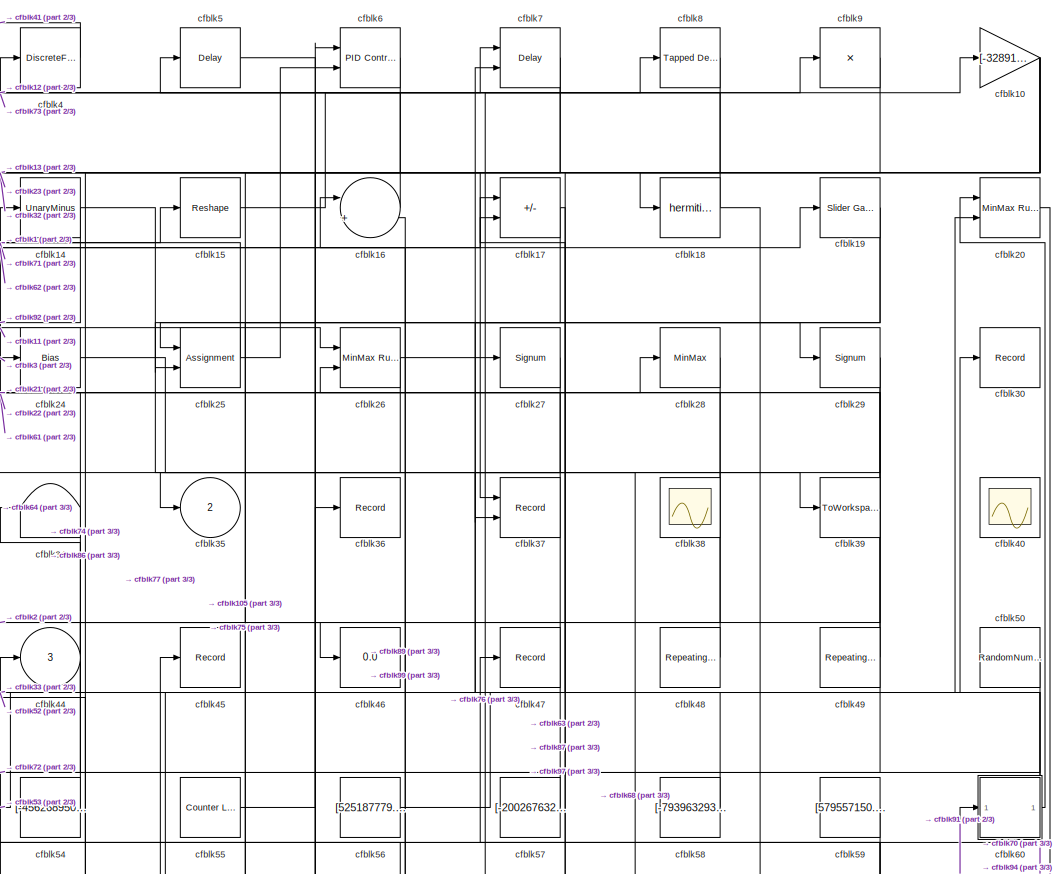
[diagram: root canvas - part 1/3, top center region]
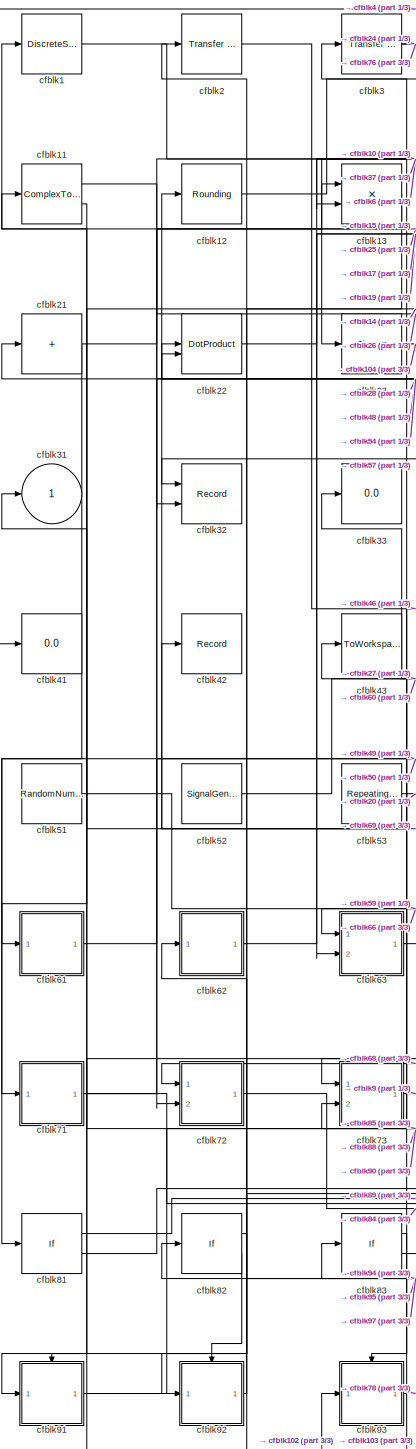
[diagram: root canvas - part 2/3, left side, full height]
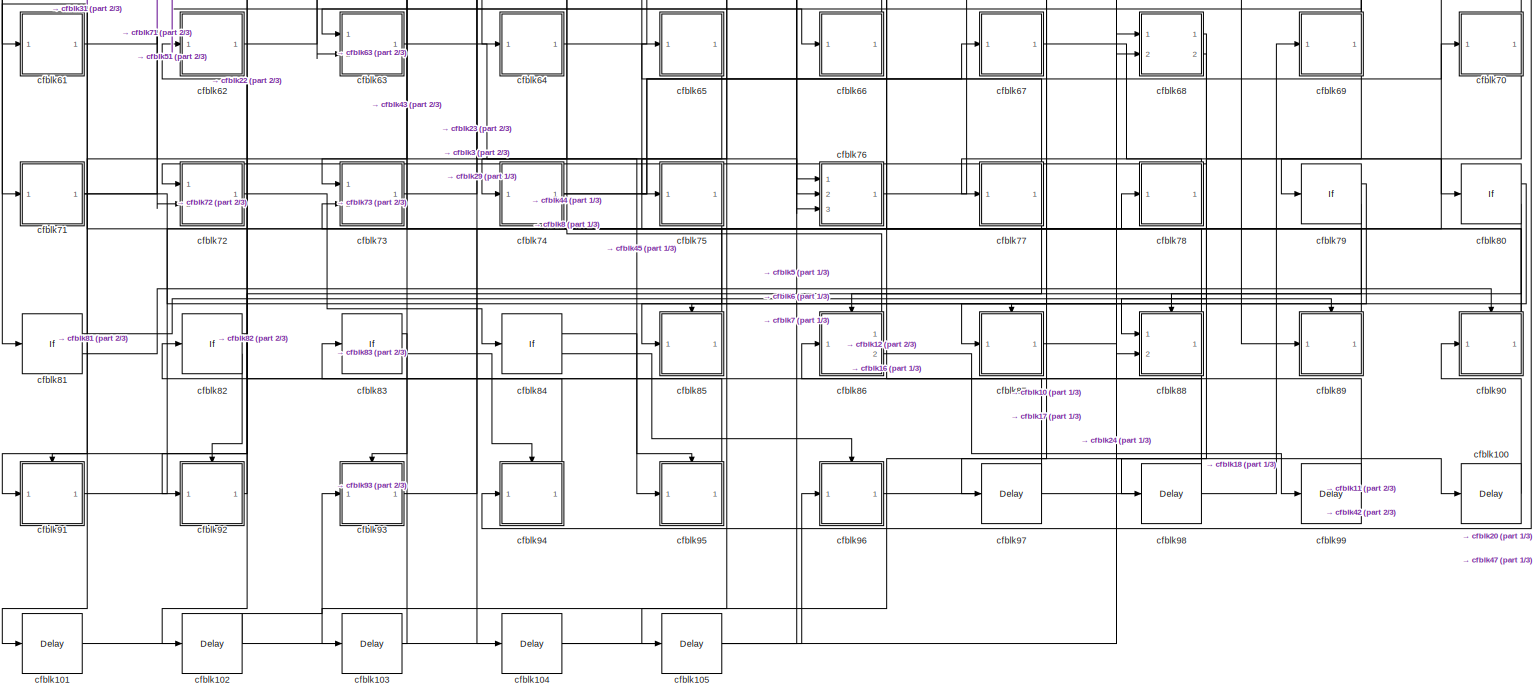
[diagram: root canvas - part 3/3, full width, bottom band]
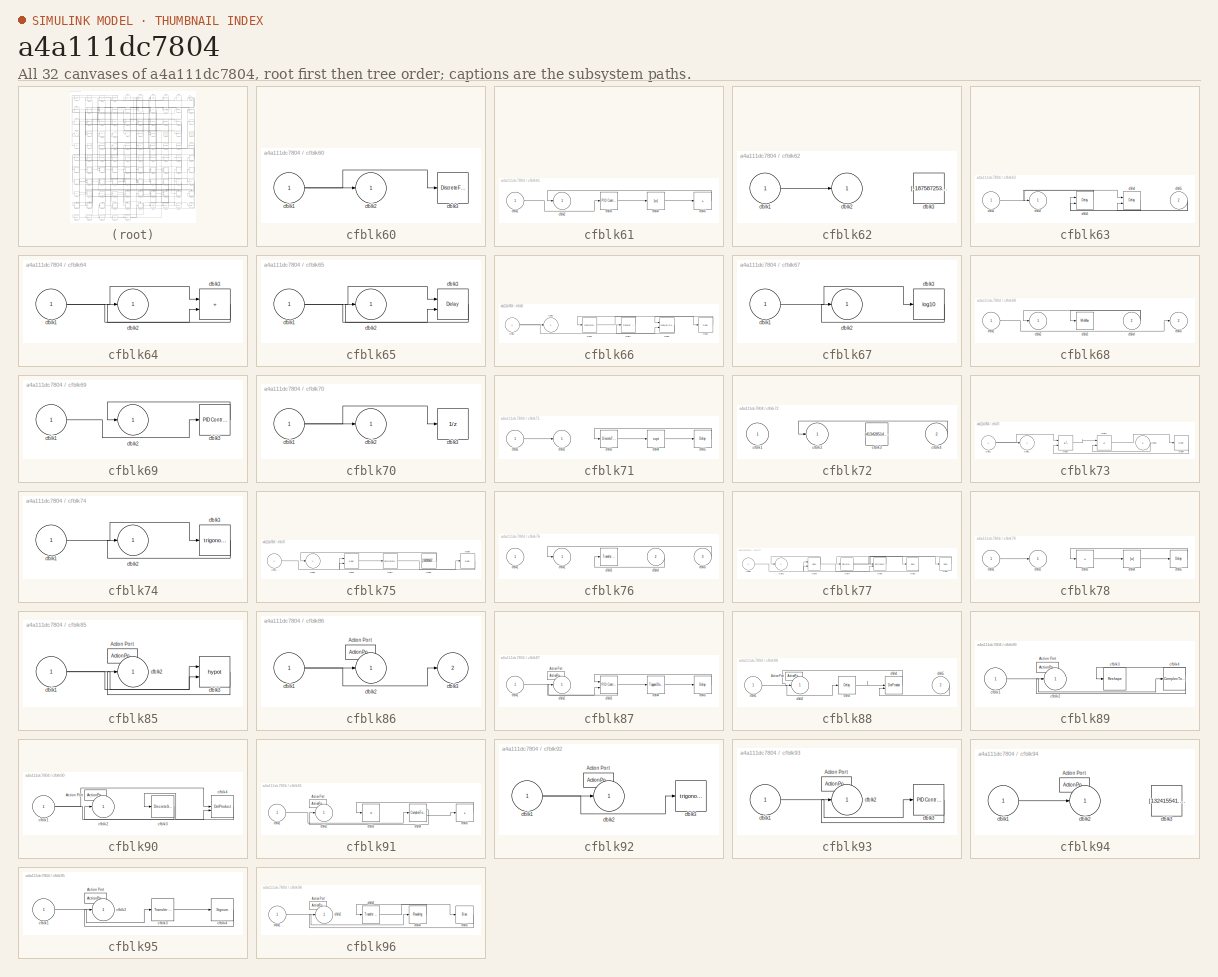
[diagram: thumbnail index - all 32 canvases of the model, root first then tree order]
MODEL slx_a4a111dc7804
KIND model
CONFIG AbsTol = auto
CONFIG EnableMultiTasking = off
CONFIG FixedStep = auto
CONFIG MaxStep = auto
CONFIG MinStep = auto
CONFIG RelTol = 1e-3
CONFIG SampleTimeConstraint = Unconstrained
CONFIG SolverName = VariableStepAuto
CONFIG StartTime = 0.0
CONFIG StopTime = 10.0
BLOCK [DiscreteStateSpace] cfblk1
BLOCK [Gain] cfblk10
  Gain = [-328914184.972476]
BLOCK [Delay] cfblk100
  InputPortMap = u0
  Ports = [1, 1]
  SampleTime = 1
BLOCK [Delay] cfblk101
  InputPortMap = u0
  Ports = [1, 1]
  SampleTime = 1
BLOCK [Delay] cfblk102
  InputPortMap = u0
  Ports = [1, 1]
  SampleTime = 1
BLOCK [Delay] cfblk103
  InputPortMap = u0
  Ports = [1, 1]
  SampleTime = 1
BLOCK [Delay] cfblk104
  InputPortMap = u0
  Ports = [1, 1]
  SampleTime = 1
BLOCK [Delay] cfblk105
  InputPortMap = u0
  Ports = [1, 1]
  SampleTime = 1
BLOCK [ComplexToMagnitudeAngle] cfblk11
  Ports = [1, 2]
BLOCK [Rounding] cfblk12
BLOCK [Product] cfblk13
  Ports = [2, 1]
BLOCK [UnaryMinus] cfblk14
BLOCK [Reshape] cfblk15
  Ports = [1, 1]
BLOCK [Sum] cfblk16
  Inputs = |++
  Ports = [2, 1]
BLOCK [Sum] cfblk17
  IconShape = rectangular
  Inputs = +-
  Ports = [2, 1]
BLOCK [Math] cfblk18
  Operator = hermitian
  Ports = [1, 1]
BLOCK [Reference] cfblk19  REF=simulink/Math
Operations/Slider
Gain
  Ports = [1, 1]
  SourceBlock = simulink/Math\nOperations/Slider\nGain
  SourceProductBaseCode = SL
  SourceType = Slider Gain
BLOCK [Reference] cfblk2  REF=simulink/Discrete/Transfer Fcn
Lead or Lag
  Ports = [1, 1]
  SourceBlock = simulink/Discrete/Transfer Fcn\nLead or Lag
  SourceProductBaseCode = SL
  SourceType = Lead or Lag Compensator
BLOCK [Reference] cfblk20  REF=simulink/Math
Operations/MinMax
Running
Resettable
  Ports = [2, 1]
  SourceBlock = simulink/Math\nOperations/MinMax\nRunning\nResettable
  SourceProductBaseCode = SL
  SourceType = MinMax Running Resettable
BLOCK [Sum] cfblk21
  IconShape = rectangular
  Inputs = +
  Ports = [1, 1]
BLOCK [DotProduct] cfblk22
  OutDataTypeStr = Inherit: Inherit via internal rule
BLOCK [Signum] cfblk23
BLOCK [Bias] cfblk24
  Bias = [-636820341.205109]
  SaturateOnIntegerOverflow = off
BLOCK [Assignment] cfblk25
  DiagnosticForDimensions = Warning
  IndexOptions = Index vector (dialog)
  Indices = 1
  OutputSizes = 1
  Ports = [2, 1]
BLOCK [Reference] cfblk26  REF=simulink/Math
Operations/MinMax
Running
Resettable
  Ports = [2, 1]
  SourceBlock = simulink/Math\nOperations/MinMax\nRunning\nResettable
  SourceProductBaseCode = SL
  SourceType = MinMax Running Resettable
BLOCK [Signum] cfblk27
BLOCK [MinMax] cfblk28
  Function = max
  Ports = [1, 1]
BLOCK [Signum] cfblk29
BLOCK [Reference] cfblk3  REF=simulink/Discrete/Transfer Fcn
Lead or Lag
  Ports = [1, 1]
  SourceBlock = simulink/Discrete/Transfer Fcn\nLead or Lag
  SourceProductBaseCode = SL
  SourceType = Lead or Lag Compensator
BLOCK [Record] cfblk30
  FileSettingsInternal = {"entries":[{"content":{"excelSettings":{"content":{},"type":"Streamout.ExcelSettings"}},"type":"Streamout.FileSettingStorage","uuid":"6f732440-8083-4618-a95b-73a9e3cbfb31"}],"packageUris":["http://schema.mathworks.com/mf0/streamout_blocks/R2020a"],"version":"1.0"}
  Ports = [1]
  SignalsInternal = {"entries":[{"content":{"signals":[{"content":{"blockPath":["sampleModel114/cfblk30"],"channel":[],"dimensions":[1],"domain":"sampleModel114/cfblk30","lineColor":"#7e2f8e","plots":[1],"port":1,"sid":[""],"signalID":3978,"signalName":"cfblk56"},"type":"RecordBlkView.Signal","uuid":"abaa850d-7071-47b1-b445-014e62ea0cca"}]},"type":"RecordBlkView.InputSignals","uuid":"15313e5a-d335-4cfa-938b-77975951e...<+97ch>
  VisualizationBindings = {"sparklinesplugin":{"info":[{"bindingParametersList":[],"subplotID":1}]}}
BLOCK [Outport] cfblk31
BLOCK [Record] cfblk32
  CompatibilityTag = XY
  FileSettingsInternal = {"entries":[{"content":{"excelSettings":{"content":{},"type":"Streamout.ExcelSettings"}},"type":"Streamout.FileSettingStorage","uuid":"1e5fc924-9bc1-474e-b9ee-34acf89f6910"}],"packageUris":["http://schema.mathworks.com/mf0/streamout_blocks/R2020a"],"version":"1.0"}
  Layout = [1 1]
  Ports = [2]
  SignalsInternal = {"entries":[{"content":{"signals":[{"content":{"blockPath":["sampleModel114/cfblk32"],"channel":[],"dimensions":[1],"domain":"sampleModel114/cfblk32","lineColor":"#a2142f","plots":[1],"port":1,"sid":[""],"signalID":3946,"signalName":"cfblk26"},"type":"RecordBlkView.Signal","uuid":"cdb79ed9-a608-426b-8abc-723b98b9592f"},{"content":{"blockPath":["sampleModel114/cfblk32"],"channel":[],"dimensions":[1...<+383ch>
  VisualizationBindings = {"xyplotplugin":{"info":[{"series":[{"bindingParametersList":[{"parameter":"X-Axis","signalID":3946,"signalName":"cfblk26"},{"parameter":"Y-Axis","signalID":3950,"signalName":"cfblk10"}],"seriesID":64369}],"subplotID":1}]}}
BLOCK [Display] cfblk33
  Decimation = 1
  Ports = [1]
BLOCK [Terminator] cfblk34
BLOCK [Outport] cfblk35
  Port = 2
BLOCK [Record] cfblk36
  FileSettingsInternal = {"entries":[{"content":{"excelSettings":{"content":{},"type":"Streamout.ExcelSettings"}},"type":"Streamout.FileSettingStorage","uuid":"d14bfd64-1427-4d04-a3cb-6aab52ebe24d"}],"packageUris":["http://schema.mathworks.com/mf0/streamout_blocks/R2020a"],"version":"1.0"}
  Ports = [1]
  SignalsInternal = {"entries":[{"content":{"signals":[{"content":{"blockPath":["sampleModel114/cfblk36"],"channel":[],"dimensions":[1],"domain":"sampleModel114/cfblk36","lineColor":"#77ac30","plots":[1],"port":1,"sid":[""],"signalID":3982,"signalName":"cfblk55"},"type":"RecordBlkView.Signal","uuid":"b31129c2-2f4c-4d96-8797-d382d218cc0a"}]},"type":"RecordBlkView.InputSignals","uuid":"692b68c9-0b55-408a-bd9d-a7bcc51e3...<+97ch>
  VisualizationBindings = {"sparklinesplugin":{"info":[{"bindingParametersList":[],"subplotID":1}]}}
BLOCK [Record] cfblk37
  CompatibilityTag = XY
  FileSettingsInternal = {"entries":[{"content":{"excelSettings":{"content":{},"type":"Streamout.ExcelSettings"}},"type":"Streamout.FileSettingStorage","uuid":"6feb617c-96ae-4424-b0f9-ec283f5dbd79"}],"packageUris":["http://schema.mathworks.com/mf0/streamout_blocks/R2020a"],"version":"1.0"}
  Layout = [1 1]
  Ports = [2]
  SignalsInternal = {"entries":[{"content":{"signals":[{"content":{"blockPath":["sampleModel114/cfblk37"],"channel":[],"dimensions":[1],"domain":"sampleModel114/cfblk37","lineColor":"#a2142f","plots":[1],"port":1,"sid":[""],"signalID":3954,"signalName":"cfblk1"},"type":"RecordBlkView.Signal","uuid":"093a09b4-ee96-4c1b-8a1f-a24d2bf135ac"},{"content":{"blockPath":["sampleModel114/cfblk37"],"channel":[],"dimensions":[1]...<+382ch>
  VisualizationBindings = {"xyplotplugin":{"info":[{"series":[{"bindingParametersList":[{"parameter":"X-Axis","signalID":3954,"signalName":"cfblk1"},{"parameter":"Y-Axis","signalID":3958,"signalName":"cfblk29"}],"seriesID":46155}],"subplotID":1}]}}
BLOCK [Scope] cfblk38
  Floating = on
  NumInputPorts = 1
  Ports = []
BLOCK [ToWorkspace] cfblk39
  FixptAsFi = on
  MaxDataPoints = inf
  Ports = [1]
  SampleTime = -1
  SaveFormat = Timeseries
  VariableName = ordnpdx
BLOCK [DiscreteFir] cfblk4
  InputPortMap = u0
  OutputPortMap = o0
  Ports = [1, 1]
  SampleTime = 1
BLOCK [Scope] cfblk40
  Floating = on
  NumInputPorts = 1
  Ports = []
BLOCK [Display] cfblk41
  Decimation = 1
  Ports = [1]
BLOCK [Record] cfblk42
  FileSettingsInternal = {"entries":[{"content":{"excelSettings":{"content":{},"type":"Streamout.ExcelSettings"}},"type":"Streamout.FileSettingStorage","uuid":"ad2e23ba-ed44-45e7-b304-d3d775d0c807"}],"packageUris":["http://schema.mathworks.com/mf0/streamout_blocks/R2020a"],"version":"1.0"}
  Ports = [1]
  SignalsInternal = {"entries":[{"content":{"signals":[{"content":{"blockPath":["sampleModel114/cfblk42"],"channel":[],"dimensions":[1],"domain":"sampleModel114/cfblk42","lineColor":"#22b573","plots":[1],"port":1,"sid":[""],"signalID":3962,"signalName":"cfblk69"},"type":"RecordBlkView.Signal","uuid":"5718a0be-f644-47e7-87bb-e51d7adf105f"}]},"type":"RecordBlkView.InputSignals","uuid":"33ee69ff-7b31-44e6-840c-97c2fd295...<+97ch>
  VisualizationBindings = {"sparklinesplugin":{"info":[{"bindingParametersList":[],"subplotID":1}]}}
BLOCK [ToWorkspace] cfblk43
  FixptAsFi = on
  MaxDataPoints = inf
  Ports = [1]
  SampleTime = -1
  SaveFormat = Timeseries
  VariableName = qtulbia
BLOCK [Outport] cfblk44
  Port = 3
BLOCK [Record] cfblk45
  FileSettingsInternal = {"entries":[{"content":{"excelSettings":{"content":{},"type":"Streamout.ExcelSettings"}},"type":"Streamout.FileSettingStorage","uuid":"751143e5-603e-4d54-b43a-994097399540"}],"packageUris":["http://schema.mathworks.com/mf0/streamout_blocks/R2020a"],"version":"1.0"}
  Ports = [1]
  SignalsInternal = {"entries":[{"content":{"signals":[{"content":{"blockPath":["sampleModel114/cfblk45"],"channel":[],"dimensions":[1],"domain":"sampleModel114/cfblk45","lineColor":"#0072bd","plots":[1],"port":1,"sid":[""],"signalID":3966,"signalName":"cfblk77"},"type":"RecordBlkView.Signal","uuid":"235694c6-6f18-4190-92df-cd6338558649"}]},"type":"RecordBlkView.InputSignals","uuid":"8e0ed17c-3675-4dfc-b25e-de55ecc88...<+97ch>
  VisualizationBindings = {"sparklinesplugin":{"info":[{"bindingParametersList":[],"subplotID":1}]}}
BLOCK [Display] cfblk46
  Decimation = 1
  Ports = [1]
BLOCK [Record] cfblk47
  FileSettingsInternal = {"entries":[{"content":{"excelSettings":{"content":{},"type":"Streamout.ExcelSettings"}},"type":"Streamout.FileSettingStorage","uuid":"985b3b57-4f89-43cf-b7d7-c183da39067a"}],"packageUris":["http://schema.mathworks.com/mf0/streamout_blocks/R2020a"],"version":"1.0"}
  Ports = [1]
  SignalsInternal = {"entries":[{"content":{"signals":[{"content":{"blockPath":["sampleModel114/cfblk47"],"channel":[],"dimensions":[1],"domain":"sampleModel114/cfblk47","lineColor":"#d95319","plots":[1],"port":1,"sid":[""],"signalID":3970,"signalName":"cfblk70"},"type":"RecordBlkView.Signal","uuid":"fdeeed87-07ae-4a35-bcd1-5812482a31a8"}]},"type":"RecordBlkView.InputSignals","uuid":"0b00f508-3d53-4c62-81bd-70049eb0f...<+97ch>
  VisualizationBindings = {"sparklinesplugin":{"info":[{"bindingParametersList":[],"subplotID":1}]}}
BLOCK [Reference] cfblk48  REF=simulink/Sources/Repeating
Sequence
Stair
  Ports = [0, 1]
  SourceBlock = simulink/Sources/Repeating\nSequence\nStair
  SourceProductBaseCode = SL
  SourceType = Repeating Sequence Stair
BLOCK [Reference] cfblk49  REF=simulink/Sources/Repeating
Sequence
Stair
  Ports = [0, 1]
  SourceBlock = simulink/Sources/Repeating\nSequence\nStair
  SourceProductBaseCode = SL
  SourceType = Repeating Sequence Stair
BLOCK [Delay] cfblk5
  InputPortMap = u0
  Ports = [1, 1]
  SampleTime = 1
BLOCK [RandomNumber] cfblk50
  Mean = [77365.058601]
  SampleTime = 0.1
  Seed = [704579107.000000]
  Variance = [11085.519281]
BLOCK [RandomNumber] cfblk51
  Mean = [-65590.466499]
  SampleTime = 0.1
  Seed = [717558115.000000]
  Variance = [27776.823902]
BLOCK [SignalGenerator] cfblk52
  Amplitude = [-672375620.748498]
  Ports = [0, 1]
  Units = rad/sec
  WaveForm = sawtooth
BLOCK [Reference] cfblk53  REF=simulink/Sources/Repeating
Sequence
Stair
  Ports = [0, 1]
  SourceBlock = simulink/Sources/Repeating\nSequence\nStair
  SourceProductBaseCode = SL
  SourceType = Repeating Sequence Stair
BLOCK [Constant] cfblk54
  SampleTime = 1
  Value = [-456268950.143290]
BLOCK [Reference] cfblk55  REF=simulink/Sources/Counter
Limited
  Ports = [0, 1]
  SourceBlock = simulink/Sources/Counter\nLimited
  SourceProductBaseCode = SL
  SourceType = Counter Limited
BLOCK [Constant] cfblk56
  SampleTime = 1
  Value = [525187779.357440]
BLOCK [Constant] cfblk57
  SampleTime = 1
  Value = [-200267632.458782]
BLOCK [Constant] cfblk58
  SampleTime = 1
  Value = [-793963293.754400]
BLOCK [Constant] cfblk59
  SampleTime = 1
  Value = [579557150.545943]
BLOCK [Reference] cfblk6  REF=slpidlib/PID Controller (2DOF)
  Ports = [2, 1]
  SourceBlock = slpidlib/PID Controller (2DOF)
  SourceProductBaseCode = SL
  SourceType = PID 2dof
BLOCK [SubSystem] cfblk60
  Ports = [1, 1]
  RequestExecContextInheritance = off
BLOCK [Inport] cfblk60/cfblk1
BLOCK [Outport] cfblk60/cfblk2
BLOCK [DiscreteFilter] cfblk60/cfblk3
  InputPortMap = u0
  Ports = [1, 1]
  SampleTime = 1
BLOCK [SubSystem] cfblk61
  Ports = [1, 1]
  RequestExecContextInheritance = off
BLOCK [Inport] cfblk61/cfblk1
BLOCK [Outport] cfblk61/cfblk2
BLOCK [Reference] cfblk61/cfblk3  REF=slpidlib/PID Controller
  Ports = [1, 1]
  SourceBlock = slpidlib/PID Controller
  SourceProductBaseCode = SL
  SourceType = PID 1dof
BLOCK [Abs] cfblk61/cfblk4
  SaturateOnIntegerOverflow = off
BLOCK [Sum] cfblk61/cfblk5
  IconShape = rectangular
  Inputs = +
  Ports = [1, 1]
BLOCK [SubSystem] cfblk62
  Ports = [1, 1]
  RequestExecContextInheritance = off
BLOCK [Inport] cfblk62/cfblk1
BLOCK [Outport] cfblk62/cfblk2
BLOCK [Constant] cfblk62/cfblk3
  SampleTime = 1
  Value = [-187587253.913859]
BLOCK [SubSystem] cfblk63
  Ports = [2, 1]
  RequestExecContextInheritance = off
BLOCK [Inport] cfblk63/cfblk1
BLOCK [Outport] cfblk63/cfblk2
BLOCK [Delay] cfblk63/cfblk3
  InputPortMap = u0,e6
  Ports = [2, 1]
  SampleTime = 1
  ShowEnablePort = on
BLOCK [Delay] cfblk63/cfblk4
  InputPortMap = u0,e6
  Ports = [2, 1]
  SampleTime = 1
  ShowEnablePort = on
BLOCK [Inport] cfblk63/cfblk5
  Port = 2
BLOCK [SubSystem] cfblk64
  Ports = [1, 1]
  RequestExecContextInheritance = off
BLOCK [Inport] cfblk64/cfblk1
BLOCK [Outport] cfblk64/cfblk2
BLOCK [Sum] cfblk64/cfblk3
  IconShape = rectangular
  Ports = [2, 1]
BLOCK [SubSystem] cfblk65
  Ports = [1, 1]
  RequestExecContextInheritance = off
BLOCK [Inport] cfblk65/cfblk1
BLOCK [Outport] cfblk65/cfblk2
BLOCK [Delay] cfblk65/cfblk3
  InputPortMap = u0,e6
  Ports = [2, 1]
  SampleTime = 1
  ShowEnablePort = on
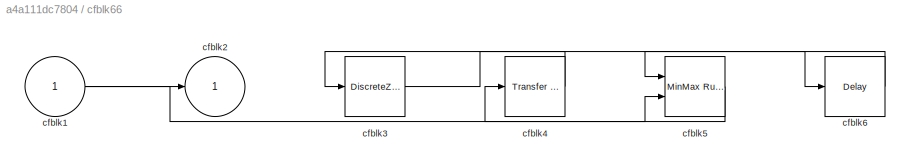
BLOCK [SubSystem] cfblk66
  Ports = [1, 1]
  RequestExecContextInheritance = off
BLOCK [Inport] cfblk66/cfblk1
BLOCK [Outport] cfblk66/cfblk2
BLOCK [DiscreteZeroPole] cfblk66/cfblk3
  Gain = 1
  Poles = [0 0.5]
BLOCK [Reference] cfblk66/cfblk4  REF=simulink/Discrete/Transfer Fcn
Real Zero
  Ports = [1, 1]
  SourceBlock = simulink/Discrete/Transfer Fcn\nReal Zero
  SourceProductBaseCode = SL
  SourceType = Transfer Fcn Real Zero
BLOCK [Reference] cfblk66/cfblk5  REF=simulink/Math
Operations/MinMax
Running
Resettable
  Ports = [2, 1]
  SourceBlock = simulink/Math\nOperations/MinMax\nRunning\nResettable
  SourceProductBaseCode = SL
  SourceType = MinMax Running Resettable
BLOCK [Delay] cfblk66/cfblk6
  InputPortMap = u0
  Ports = [1, 1]
  SampleTime = 1
BLOCK [SubSystem] cfblk67
  Ports = [1, 1]
  RequestExecContextInheritance = off
BLOCK [Inport] cfblk67/cfblk1
BLOCK [Outport] cfblk67/cfblk2
BLOCK [Math] cfblk67/cfblk3
  Operator = log10
  Ports = [1, 1]
BLOCK [SubSystem] cfblk68
  Ports = [2, 2]
  RequestExecContextInheritance = off
BLOCK [Inport] cfblk68/cfblk1
BLOCK [Outport] cfblk68/cfblk2
BLOCK [MinMax] cfblk68/cfblk3
  Function = max
  Ports = [1, 1]
BLOCK [Inport] cfblk68/cfblk4
  Port = 2
BLOCK [Outport] cfblk68/cfblk5
  Port = 2
BLOCK [SubSystem] cfblk69
  Ports = [1, 1]
  RequestExecContextInheritance = off
BLOCK [Inport] cfblk69/cfblk1
BLOCK [Outport] cfblk69/cfblk2
BLOCK [Reference] cfblk69/cfblk3  REF=slpidlib/PID Controller
  Ports = [1, 1]
  SourceBlock = slpidlib/PID Controller
  SourceProductBaseCode = SL
  SourceType = PID 1dof
BLOCK [Delay] cfblk7
  DelayLengthSource = Input port
  InputPortMap = u0,p1
  Ports = [2, 1]
  SampleTime = 1
BLOCK [SubSystem] cfblk70
  Ports = [1, 1]
  RequestExecContextInheritance = off
BLOCK [Inport] cfblk70/cfblk1
BLOCK [Outport] cfblk70/cfblk2
BLOCK [UnitDelay] cfblk70/cfblk3
  HasFrameUpgradeWarning = on
BLOCK [SubSystem] cfblk71
  Ports = [1, 1]
  RequestExecContextInheritance = off
BLOCK [Inport] cfblk71/cfblk1
BLOCK [Outport] cfblk71/cfblk2
BLOCK [DiscreteTransferFcn] cfblk71/cfblk3
  InputPortMap = u0
  Ports = [1, 1]
  SampleTime = 1
BLOCK [Sqrt] cfblk71/cfblk4
BLOCK [Delay] cfblk71/cfblk5
  InputPortMap = u0
  Ports = [1, 1]
  SampleTime = 1
BLOCK [SubSystem] cfblk72
  Ports = [2, 1]
  RequestExecContextInheritance = off
BLOCK [Inport] cfblk72/cfblk1
BLOCK [Outport] cfblk72/cfblk2
BLOCK [Constant] cfblk72/cfblk3
  SampleTime = 1
  Value = [413428514.679591]
BLOCK [Inport] cfblk72/cfblk4
  Port = 2
BLOCK [SubSystem] cfblk73
  Ports = [2, 1]
  RequestExecContextInheritance = off
BLOCK [Inport] cfblk73/cfblk1
BLOCK [Outport] cfblk73/cfblk2
BLOCK [Sum] cfblk73/cfblk3
  IconShape = rectangular
  Inputs = --
  Ports = [2, 1]
BLOCK [Sum] cfblk73/cfblk4
  IconShape = rectangular
  Ports = [2, 1]
BLOCK [Inport] cfblk73/cfblk5
  Port = 2
BLOCK [Delay] cfblk73/cfblk6
  InputPortMap = u0
  Ports = [1, 1]
  SampleTime = 1
BLOCK [SubSystem] cfblk74
  Ports = [1, 1]
  RequestExecContextInheritance = off
BLOCK [Inport] cfblk74/cfblk1
BLOCK [Outport] cfblk74/cfblk2
BLOCK [Trigonometry] cfblk74/cfblk3
  Ports = [1, 1]
BLOCK [SubSystem] cfblk75
  Ports = [1, 1]
  RequestExecContextInheritance = off
BLOCK [Inport] cfblk75/cfblk1
BLOCK [Outport] cfblk75/cfblk2
BLOCK [Delay] cfblk75/cfblk3
  DelayLengthSource = Input port
  InputPortMap = u0,p1
  Ports = [2, 1]
  SampleTime = 1
BLOCK [PermuteDimensions] cfblk75/cfblk4
BLOCK [Constant] cfblk75/cfblk5
  SampleTime = 1
  Value = [182083647.612013]
BLOCK [Delay] cfblk75/cfblk6
  InputPortMap = u0
  Ports = [1, 1]
  SampleTime = 1
BLOCK [SubSystem] cfblk76
  Ports = [3, 1]
  RequestExecContextInheritance = off
BLOCK [Inport] cfblk76/cfblk1
BLOCK [Outport] cfblk76/cfblk2
BLOCK [Reference] cfblk76/cfblk3  REF=simulink/Discrete/Transfer Fcn
Real Zero
  Ports = [1, 1]
  SourceBlock = simulink/Discrete/Transfer Fcn\nReal Zero
  SourceProductBaseCode = SL
  SourceType = Transfer Fcn Real Zero
BLOCK [Inport] cfblk76/cfblk4
  Port = 2
BLOCK [Inport] cfblk76/cfblk5
  Port = 3
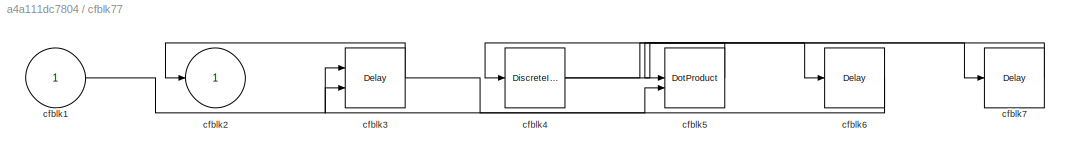
BLOCK [SubSystem] cfblk77
  Ports = [1, 1]
  RequestExecContextInheritance = off
BLOCK [Inport] cfblk77/cfblk1
BLOCK [Outport] cfblk77/cfblk2
BLOCK [Delay] cfblk77/cfblk3
  InputPortMap = u0,e6
  Ports = [2, 1]
  SampleTime = 1
  ShowEnablePort = on
BLOCK [DiscreteIntegrator] cfblk77/cfblk4
  ICPrevOutput = DiscIntNeverNeededParam
  ICPrevScaledInput = DiscIntNeverNeededParam
  InitialConditionSetting = Auto
  Ports = [1, 1]
BLOCK [DotProduct] cfblk77/cfblk5
  OutDataTypeStr = Inherit: Inherit via internal rule
BLOCK [Delay] cfblk77/cfblk6
  InputPortMap = u0
  Ports = [1, 1]
  SampleTime = 1
BLOCK [Delay] cfblk77/cfblk7
  InputPortMap = u0
  Ports = [1, 1]
  SampleTime = 1
BLOCK [SubSystem] cfblk78
  Ports = [1, 1]
  RequestExecContextInheritance = off
BLOCK [Inport] cfblk78/cfblk1
BLOCK [Outport] cfblk78/cfblk2
BLOCK [Sum] cfblk78/cfblk3
  IconShape = rectangular
  Inputs = +
  Ports = [1, 1]
BLOCK [Abs] cfblk78/cfblk4
  SaturateOnIntegerOverflow = off
BLOCK [Delay] cfblk78/cfblk5
  InputPortMap = u0
  Ports = [1, 1]
  SampleTime = 1
BLOCK [If] cfblk79
  IfExpression = u1 >= 0
  Ports = [1, 2]
  SampleTime = 1
BLOCK [Reference] cfblk8  REF=simulink/Discrete/Tapped Delay
  Ports = [1, 1]
  SourceBlock = simulink/Discrete/Tapped Delay
  SourceProductBaseCode = SL
  SourceType = Tapped Delay Line
BLOCK [If] cfblk80
  IfExpression = u1 >= 0
  Ports = [1, 2]
  SampleTime = 1
BLOCK [If] cfblk81
  IfExpression = u1 >= 0
  Ports = [1, 2]
  SampleTime = 1
BLOCK [If] cfblk82
  IfExpression = u1 >= 0
  Ports = [1, 2]
  SampleTime = 1
BLOCK [If] cfblk83
  IfExpression = u1 >= 0
  Ports = [1, 2]
  SampleTime = 1
BLOCK [If] cfblk84
  IfExpression = u1 >= 0
  Ports = [1, 2]
  SampleTime = 1
BLOCK [SubSystem] cfblk85
  Ports = [1, 1, 0, 0, 0, 0, 0, 1]
  RequestExecContextInheritance = off
  TreatAsAtomicUnit = on
BLOCK [ActionPort] cfblk85/Action Port
  ActionPortLabel = if(u1 >= 0)
BLOCK [Inport] cfblk85/cfblk1
BLOCK [Outport] cfblk85/cfblk2
BLOCK [Math] cfblk85/cfblk3
  Operator = hypot
  Ports = [2, 1]
BLOCK [SubSystem] cfblk86
  Ports = [1, 2, 0, 0, 0, 0, 0, 1]
  RequestExecContextInheritance = off
  TreatAsAtomicUnit = on
BLOCK [ActionPort] cfblk86/Action Port
  ActionPortLabel = else
BLOCK [Inport] cfblk86/cfblk1
BLOCK [Outport] cfblk86/cfblk2
BLOCK [Outport] cfblk86/cfblk3
  Port = 2
BLOCK [SubSystem] cfblk87
  Ports = [1, 1, 0, 0, 0, 0, 0, 1]
  RequestExecContextInheritance = off
  TreatAsAtomicUnit = on
BLOCK [ActionPort] cfblk87/Action Port
  ActionPortLabel = if(u1 >= 0)
BLOCK [Inport] cfblk87/cfblk1
BLOCK [Outport] cfblk87/cfblk2
BLOCK [Reference] cfblk87/cfblk3  REF=slpidlib/PID Controller (2DOF)
  Ports = [2, 1]
  SourceBlock = slpidlib/PID Controller (2DOF)
  SourceProductBaseCode = SL
  SourceType = PID 2dof
BLOCK [Reference] cfblk87/cfblk4  REF=simulink/Discrete/Tapped Delay
  Ports = [1, 1]
  SourceBlock = simulink/Discrete/Tapped Delay
  SourceProductBaseCode = SL
  SourceType = Tapped Delay Line
BLOCK [Delay] cfblk87/cfblk5
  InputPortMap = u0
  Ports = [1, 1]
BLOCK [SubSystem] cfblk88
  Ports = [2, 1, 0, 0, 0, 0, 0, 1]
  RequestExecContextInheritance = off
  TreatAsAtomicUnit = on
BLOCK [ActionPort] cfblk88/Action Port
  ActionPortLabel = else
BLOCK [Inport] cfblk88/cfblk1
BLOCK [Outport] cfblk88/cfblk2
BLOCK [Delay] cfblk88/cfblk3
  InputPortMap = u0
  Ports = [1, 1]
BLOCK [DotProduct] cfblk88/cfblk4
  OutDataTypeStr = Inherit: Inherit via internal rule
BLOCK [Inport] cfblk88/cfblk5
  Port = 2
BLOCK [SubSystem] cfblk89
  Ports = [1, 1, 0, 0, 0, 0, 0, 1]
  RequestExecContextInheritance = off
  TreatAsAtomicUnit = on
BLOCK [ActionPort] cfblk89/Action Port
  ActionPortLabel = if(u1 >= 0)
BLOCK [Inport] cfblk89/cfblk1
BLOCK [Outport] cfblk89/cfblk2
BLOCK [Reshape] cfblk89/cfblk3
  Ports = [1, 1]
BLOCK [ComplexToMagnitudeAngle] cfblk89/cfblk4
  Ports = [1, 2]
BLOCK [Product] cfblk9
  Inputs = *
  Ports = [1, 1]
BLOCK [SubSystem] cfblk90
  Ports = [1, 1, 0, 0, 0, 0, 0, 1]
  RequestExecContextInheritance = off
  TreatAsAtomicUnit = on
BLOCK [ActionPort] cfblk90/Action Port
  ActionPortLabel = else
BLOCK [Inport] cfblk90/cfblk1
BLOCK [Outport] cfblk90/cfblk2
BLOCK [DiscreteStateSpace] cfblk90/cfblk3
  SampleTime = -1
BLOCK [DotProduct] cfblk90/cfblk4
  OutDataTypeStr = Inherit: Inherit via internal rule
BLOCK [SubSystem] cfblk91
  Ports = [1, 1, 0, 0, 0, 0, 0, 1]
  RequestExecContextInheritance = off
  TreatAsAtomicUnit = on
BLOCK [ActionPort] cfblk91/Action Port
  ActionPortLabel = if(u1 >= 0)
BLOCK [Inport] cfblk91/cfblk1
BLOCK [Outport] cfblk91/cfblk2
BLOCK [Product] cfblk91/cfblk3
  Inputs = *
  Ports = [1, 1]
BLOCK [ComplexToRealImag] cfblk91/cfblk4
  Ports = [1, 2]
BLOCK [Sum] cfblk91/cfblk5
  IconShape = rectangular
  Inputs = +
  Ports = [1, 1]
BLOCK [SubSystem] cfblk92
  Ports = [1, 1, 0, 0, 0, 0, 0, 1]
  RequestExecContextInheritance = off
  TreatAsAtomicUnit = on
BLOCK [ActionPort] cfblk92/Action Port
  ActionPortLabel = else
BLOCK [Inport] cfblk92/cfblk1
BLOCK [Outport] cfblk92/cfblk2
BLOCK [Trigonometry] cfblk92/cfblk3
  Ports = [1, 1]
BLOCK [SubSystem] cfblk93
  Ports = [1, 1, 0, 0, 0, 0, 0, 1]
  RequestExecContextInheritance = off
  TreatAsAtomicUnit = on
BLOCK [ActionPort] cfblk93/Action Port
  ActionPortLabel = if(u1 >= 0)
BLOCK [Inport] cfblk93/cfblk1
BLOCK [Outport] cfblk93/cfblk2
BLOCK [Reference] cfblk93/cfblk3  REF=slpidlib/PID Controller
  Ports = [1, 1]
  SourceBlock = slpidlib/PID Controller
  SourceProductBaseCode = SL
  SourceType = PID 1dof
BLOCK [SubSystem] cfblk94
  Ports = [1, 1, 0, 0, 0, 0, 0, 1]
  RequestExecContextInheritance = off
  TreatAsAtomicUnit = on
BLOCK [ActionPort] cfblk94/Action Port
  ActionPortLabel = else
BLOCK [Inport] cfblk94/cfblk1
BLOCK [Outport] cfblk94/cfblk2
BLOCK [Constant] cfblk94/cfblk3
  SampleTime = 1
  Value = [132415541.404974]
BLOCK [SubSystem] cfblk95
  Ports = [1, 1, 0, 0, 0, 0, 0, 1]
  RequestExecContextInheritance = off
  TreatAsAtomicUnit = on
BLOCK [ActionPort] cfblk95/Action Port
  ActionPortLabel = if(u1 >= 0)
BLOCK [Inport] cfblk95/cfblk1
BLOCK [Outport] cfblk95/cfblk2
BLOCK [Reference] cfblk95/cfblk3  REF=simulink/Discrete/Transfer Fcn
Lead or Lag
  Ports = [1, 1]
  SourceBlock = simulink/Discrete/Transfer Fcn\nLead or Lag
  SourceProductBaseCode = SL
  SourceType = Lead or Lag Compensator
BLOCK [Signum] cfblk95/cfblk4
BLOCK [SubSystem] cfblk96
  Ports = [1, 1, 0, 0, 0, 0, 0, 1]
  RequestExecContextInheritance = off
  TreatAsAtomicUnit = on
BLOCK [ActionPort] cfblk96/Action Port
  ActionPortLabel = else
BLOCK [Inport] cfblk96/cfblk1
BLOCK [Outport] cfblk96/cfblk2
BLOCK [Reference] cfblk96/cfblk3  REF=simulink/Discrete/Transfer Fcn
Real Zero
  Ports = [1, 1]
  SourceBlock = simulink/Discrete/Transfer Fcn\nReal Zero
  SourceProductBaseCode = SL
  SourceType = Transfer Fcn Real Zero
BLOCK [Rounding] cfblk96/cfblk4
BLOCK [Bias] cfblk96/cfblk5
  Bias = [579996897.168554]
  SaturateOnIntegerOverflow = off
BLOCK [Delay] cfblk97
  InputPortMap = u0
  Ports = [1, 1]
  SampleTime = 1
BLOCK [Delay] cfblk98
  InputPortMap = u0
  Ports = [1, 1]
  SampleTime = 1
BLOCK [Delay] cfblk99
  InputPortMap = u0
  Ports = [1, 1]
  SampleTime = 1
LINE cfblk100:1 -> cfblk90:1
LINE cfblk101:1 -> cfblk68:1
LINE cfblk102:1 -> cfblk93:1
LINE cfblk103:1 -> cfblk83:1
LINE cfblk104:1 -> cfblk96:1
LINE cfblk105:1 -> cfblk6:1
NET cfblk10:1 -> cfblk13:2, cfblk32:2, cfblk63:2, cfblk87:1
LINE cfblk11:1 -> cfblk26:1
LINE cfblk11:2 -> cfblk61:1
LINE cfblk12:1 -> cfblk10:1
LINE cfblk13:1 -> cfblk91:1
NET cfblk14:1 -> cfblk39:1, cfblk92:1
LINE cfblk15:1 -> cfblk7:1
LINE cfblk16:1 -> cfblk5:1
NET cfblk17:1 -> cfblk75:1, cfblk97:1
NET cfblk18:1 -> cfblk4:1, cfblk89:1
NET cfblk19:1 -> cfblk25:1, cfblk25:2
LINE cfblk1:1 -> cfblk37:1
LINE cfblk20:1 -> cfblk94:1
NET cfblk21:1 -> cfblk13:1, cfblk81:1
LINE cfblk22:1 -> cfblk17:2
LINE cfblk23:1 -> cfblk104:1
LINE cfblk24:1 -> cfblk68:2
NET cfblk25:1 -> cfblk1:1, cfblk6:2
NET cfblk26:1 -> cfblk29:1, cfblk32:1
LINE cfblk27:1 -> cfblk35:1
LINE cfblk28:1 -> cfblk73:1
NET cfblk29:1 -> cfblk37:2, cfblk64:1
LINE cfblk2:1 -> cfblk46:1
NET cfblk3:1 -> cfblk24:1, cfblk76:3
LINE cfblk48:1 -> cfblk2:1
NET cfblk49:1 -> cfblk14:1, cfblk26:2, cfblk72:2
LINE cfblk4:1 -> cfblk41:1
LINE cfblk50:1 -> cfblk71:1
LINE cfblk51:1 -> cfblk66:1
LINE cfblk52:1 -> cfblk27:1
LINE cfblk53:1 -> cfblk20:2
LINE cfblk54:1 -> cfblk21:1
LINE cfblk55:1 -> cfblk36:1
LINE cfblk56:1 -> cfblk30:1
LINE cfblk57:1 -> cfblk22:1
LINE cfblk58:1 -> cfblk17:1
LINE cfblk59:1 -> cfblk63:1
LINE cfblk5:1 -> cfblk76:1
NET cfblk60/cfblk1:1 -> cfblk60/cfblk2:1, cfblk60/cfblk3:1
NET cfblk60:1 -> cfblk20:1, cfblk33:1, cfblk34:1
LINE cfblk61/cfblk1:1 -> cfblk61/cfblk3:1
LINE cfblk61/cfblk3:1 -> cfblk61/cfblk4:1
LINE cfblk61/cfblk4:1 -> cfblk61/cfblk5:1
LINE cfblk61/cfblk5:1 -> cfblk61/cfblk2:1
LINE cfblk61:1 -> cfblk28:1
LINE cfblk62/cfblk1:1 -> cfblk62/cfblk2:1
LINE cfblk62:1 -> cfblk19:1
LINE cfblk63/cfblk1:1 -> cfblk63/cfblk4:1
LINE cfblk63/cfblk3:1 -> cfblk63/cfblk2:1
LINE cfblk63/cfblk4:1 -> cfblk63/cfblk3:2
NET cfblk63/cfblk5:1 -> cfblk63/cfblk3:1, cfblk63/cfblk4:2
LINE cfblk63:1 -> cfblk95:1
NET cfblk64/cfblk1:1 -> cfblk64/cfblk3:1, cfblk64/cfblk3:2
LINE cfblk64/cfblk3:1 -> cfblk64/cfblk2:1
LINE cfblk64:1 -> cfblk7:2
NET cfblk65/cfblk1:1 -> cfblk65/cfblk3:1, cfblk65/cfblk3:2
LINE cfblk65/cfblk3:1 -> cfblk65/cfblk2:1
LINE cfblk65:1 -> cfblk101:1
NET cfblk66/cfblk1:1 -> cfblk66/cfblk2:1, cfblk66/cfblk5:2
LINE cfblk66/cfblk3:1 -> cfblk66/cfblk6:1
LINE cfblk66/cfblk4:1 -> cfblk66/cfblk3:1
LINE cfblk66/cfblk5:1 -> cfblk66/cfblk4:1
LINE cfblk66/cfblk6:1 -> cfblk66/cfblk5:1
LINE cfblk66:1 -> cfblk12:1
LINE cfblk67/cfblk1:1 -> cfblk67/cfblk3:1
LINE cfblk67/cfblk3:1 -> cfblk67/cfblk2:1
LINE cfblk67:1 -> cfblk80:1
LINE cfblk68/cfblk1:1 -> cfblk68/cfblk5:1
NET cfblk68/cfblk4:1 -> cfblk68/cfblk2:1, cfblk68/cfblk3:1
LINE cfblk68:1 -> cfblk72:1
LINE cfblk68:2 -> cfblk88:1
LINE cfblk69/cfblk1:1 -> cfblk69/cfblk3:1
LINE cfblk69/cfblk3:1 -> cfblk69/cfblk2:1
NET cfblk69:1 -> cfblk11:1, cfblk42:1, cfblk79:1
LINE cfblk6:1 -> cfblk23:1
NET cfblk70/cfblk1:1 -> cfblk70/cfblk2:1, cfblk70/cfblk3:1
NET cfblk70:1 -> cfblk47:1, cfblk98:1
LINE cfblk71/cfblk1:1 -> cfblk71/cfblk2:1
LINE cfblk71/cfblk3:1 -> cfblk71/cfblk4:1
LINE cfblk71/cfblk4:1 -> cfblk71/cfblk5:1
LINE cfblk71/cfblk5:1 -> cfblk71/cfblk3:1
NET cfblk71:1 -> cfblk15:1, cfblk88:2
LINE cfblk72/cfblk4:1 -> cfblk72/cfblk2:1
LINE cfblk72:1 -> cfblk84:1
NET cfblk73/cfblk1:1 -> cfblk73/cfblk2:1, cfblk73/cfblk3:1
LINE cfblk73/cfblk3:1 -> cfblk73/cfblk4:1
LINE cfblk73/cfblk4:1 -> cfblk73/cfblk6:1
LINE cfblk73/cfblk5:1 -> cfblk73/cfblk4:2
LINE cfblk73/cfblk6:1 -> cfblk73/cfblk3:2
LINE cfblk73:1 -> cfblk9:1
LINE cfblk74/cfblk1:1 -> cfblk74/cfblk3:1
LINE cfblk74/cfblk3:1 -> cfblk74/cfblk2:1
NET cfblk74:1 -> cfblk67:1, cfblk70:1
LINE cfblk75/cfblk1:1 -> cfblk75/cfblk3:1
LINE cfblk75/cfblk3:1 -> cfblk75/cfblk4:1
LINE cfblk75/cfblk4:1 -> cfblk75/cfblk6:1
LINE cfblk75/cfblk5:1 -> cfblk75/cfblk2:1
LINE cfblk75/cfblk6:1 -> cfblk75/cfblk3:2
LINE cfblk75:1 -> cfblk85:1
LINE cfblk76/cfblk4:1 -> cfblk76/cfblk3:1
LINE cfblk76/cfblk5:1 -> cfblk76/cfblk2:1
LINE cfblk76:1 -> cfblk8:1
LINE cfblk77/cfblk1:1 -> cfblk77/cfblk3:1
NET cfblk77/cfblk3:1 -> cfblk77/cfblk2:1, cfblk77/cfblk5:2
NET cfblk77/cfblk4:1 -> cfblk77/cfblk6:1, cfblk77/cfblk7:1
LINE cfblk77/cfblk5:1 -> cfblk77/cfblk4:1
LINE cfblk77/cfblk6:1 -> cfblk77/cfblk3:2
LINE cfblk77/cfblk7:1 -> cfblk77/cfblk5:1
NET cfblk77:1 -> cfblk102:1, cfblk45:1
LINE cfblk78/cfblk1:1 -> cfblk78/cfblk2:1
LINE cfblk78/cfblk3:1 -> cfblk78/cfblk4:1
LINE cfblk78/cfblk4:1 -> cfblk78/cfblk5:1
LINE cfblk78/cfblk5:1 -> cfblk78/cfblk3:1
LINE cfblk78:1 -> cfblk77:1
LINE cfblk79:1 -> cfblk85:ifaction
LINE cfblk79:2 -> cfblk86:ifaction
NET cfblk7:1 -> cfblk105:1, cfblk76:2
LINE cfblk80:1 -> cfblk87:ifaction
LINE cfblk80:2 -> cfblk88:ifaction
LINE cfblk81:1 -> cfblk89:ifaction
LINE cfblk81:2 -> cfblk90:ifaction
LINE cfblk82:1 -> cfblk91:ifaction
LINE cfblk82:2 -> cfblk92:ifaction
LINE cfblk83:1 -> cfblk93:ifaction
LINE cfblk83:2 -> cfblk94:ifaction
LINE cfblk84:1 -> cfblk95:ifaction
LINE cfblk84:2 -> cfblk96:ifaction
NET cfblk85/cfblk1:1 -> cfblk85/cfblk3:1, cfblk85/cfblk3:2
LINE cfblk85/cfblk3:1 -> cfblk85/cfblk2:1
LINE cfblk85:1 -> cfblk73:2
NET cfblk86/cfblk1:1 -> cfblk86/cfblk2:1, cfblk86/cfblk3:1
LINE cfblk86:1 -> cfblk44:1
LINE cfblk86:2 -> cfblk99:1
LINE cfblk87/cfblk1:1 -> cfblk87/cfblk3:2
NET cfblk87/cfblk3:1 -> cfblk87/cfblk2:1, cfblk87/cfblk4:1
LINE cfblk87/cfblk4:1 -> cfblk87/cfblk5:1
LINE cfblk87/cfblk5:1 -> cfblk87/cfblk3:1
LINE cfblk87:1 -> cfblk100:1
LINE cfblk88/cfblk1:1 -> cfblk88/cfblk3:1
LINE cfblk88/cfblk3:1 -> cfblk88/cfblk4:1
LINE cfblk88/cfblk4:1 -> cfblk88/cfblk2:1
LINE cfblk88/cfblk5:1 -> cfblk88/cfblk4:2
NET cfblk88:1 -> cfblk103:1, cfblk43:1
LINE cfblk89/cfblk1:1 -> cfblk89/cfblk4:1
LINE cfblk89/cfblk4:1 -> cfblk89/cfblk3:1
LINE cfblk89/cfblk4:2 -> cfblk89/cfblk2:1
LINE cfblk89:1 -> cfblk16:1
LINE cfblk8:1 -> cfblk74:1
NET cfblk90/cfblk1:1 -> cfblk90/cfblk4:1, cfblk90/cfblk4:2
LINE cfblk90/cfblk3:1 -> cfblk90/cfblk2:1
LINE cfblk90/cfblk4:1 -> cfblk90/cfblk3:1
NET cfblk90:1 -> cfblk31:1, cfblk65:1
LINE cfblk91/cfblk1:1 -> cfblk91/cfblk4:1
LINE cfblk91/cfblk4:1 -> cfblk91/cfblk2:1
LINE cfblk91/cfblk4:2 -> cfblk91/cfblk5:1
LINE cfblk91/cfblk5:1 -> cfblk91/cfblk3:1
LINE cfblk91:1 -> cfblk60:1
NET cfblk92/cfblk1:1 -> cfblk92/cfblk2:1, cfblk92/cfblk3:1
LINE cfblk92:1 -> cfblk62:1
LINE cfblk93/cfblk1:1 -> cfblk93/cfblk3:1
LINE cfblk93/cfblk3:1 -> cfblk93/cfblk2:1
LINE cfblk93:1 -> cfblk78:1
LINE cfblk94/cfblk1:1 -> cfblk94/cfblk2:1
LINE cfblk94:1 -> cfblk22:2
LINE cfblk95/cfblk1:1 -> cfblk95/cfblk3:1
LINE cfblk95/cfblk3:1 -> cfblk95/cfblk4:1
LINE cfblk95/cfblk4:1 -> cfblk95/cfblk2:1
LINE cfblk95:1 -> cfblk82:1
LINE cfblk96/cfblk1:1 -> cfblk96/cfblk4:1
LINE cfblk96/cfblk3:1 -> cfblk96/cfblk5:1
LINE cfblk96/cfblk4:1 -> cfblk96/cfblk3:1
LINE cfblk96/cfblk5:1 -> cfblk96/cfblk2:1
LINE cfblk96:1 -> cfblk69:1
LINE cfblk97:1 -> cfblk3:1
LINE cfblk98:1 -> cfblk86:1
LINE cfblk99:1 -> cfblk16:2
LINE cfblk9:1 -> cfblk18:1
note: NET lines group one-source signal fan-out (src -> all destinations, sorted); 1:1 wires keep LINE
